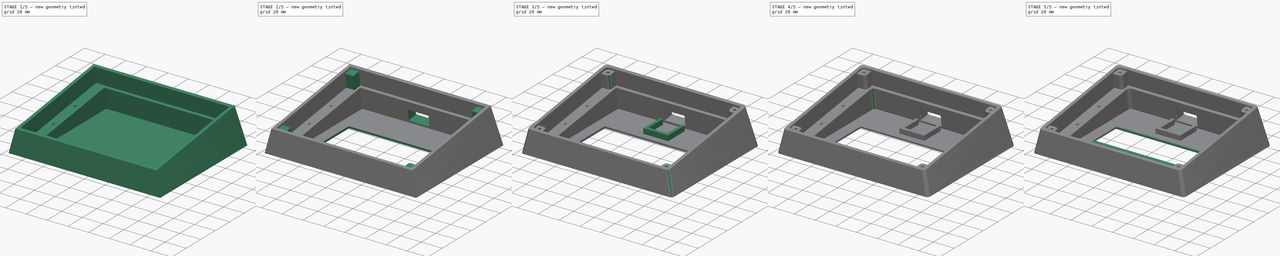
[diagram: build sequence overview — one tinted view per stage of 5, left to right]
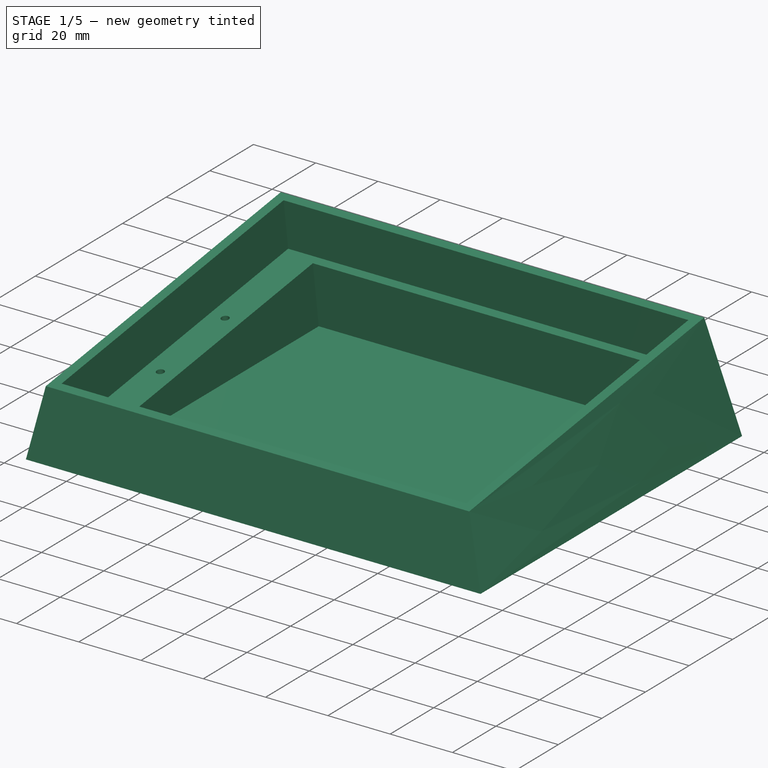
[diagram: stage 1 of 5 — iso view after this stage's code; geometry added in this stage tinted green]
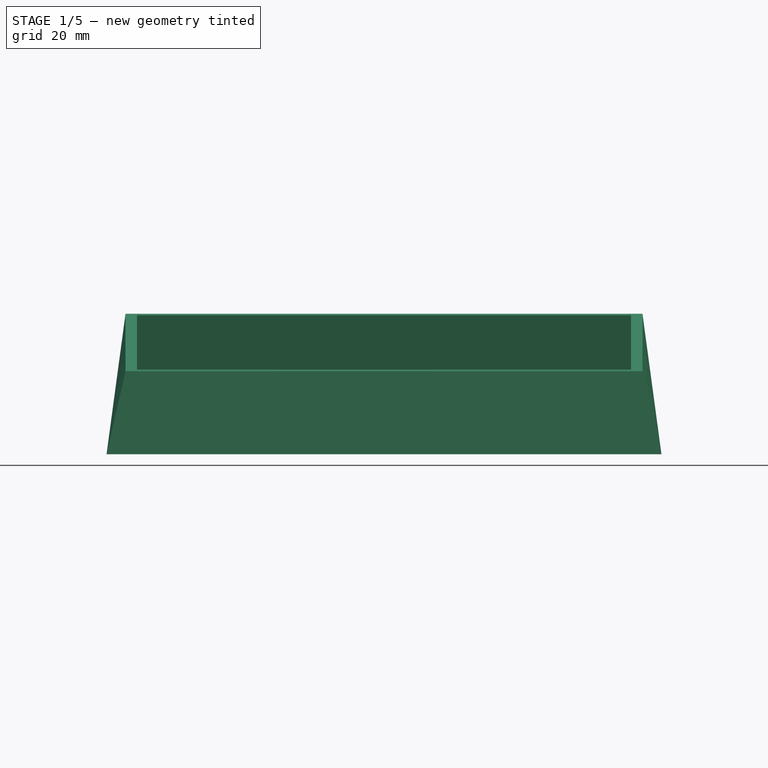
[diagram: stage 1 of 5 — front view after this stage's code; geometry added in this stage tinted green]
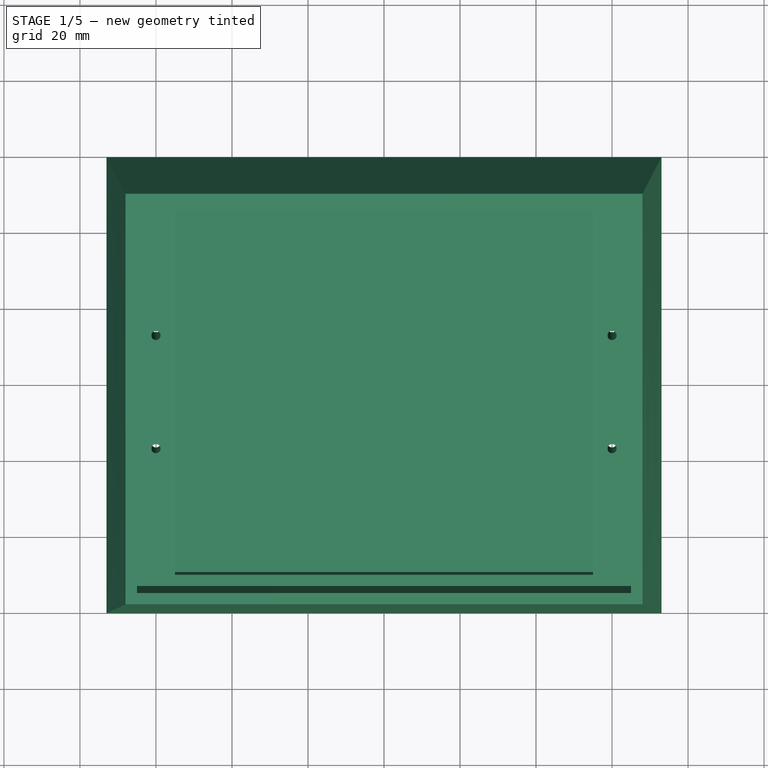
[diagram: stage 1 of 5 — top view after this stage's code; geometry added in this stage tinted green]
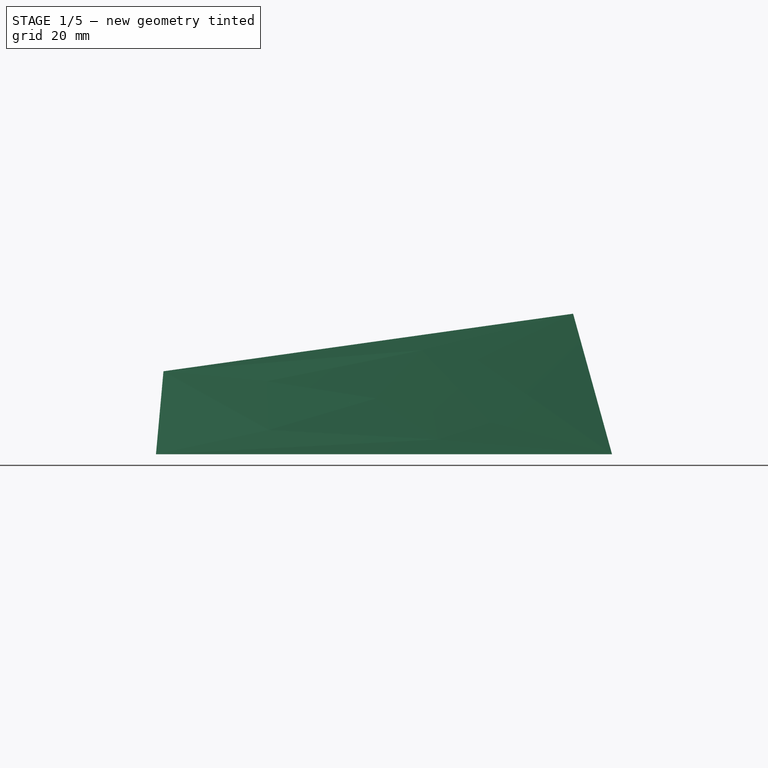
[diagram: stage 1 of 5 — right view after this stage's code; geometry added in this stage tinted green]
FCSTD DOCUMENT  (FreeCAD 0.21R)
Label: plop
License: All rights reserved
LicenseURL: http://en.wikipedia.org/wiki/All_rights_reserved
objects: Sketcher::SketchObject×11, PartDesign::Fillet×7, PartDesign::Pocket×4, PartDesign::Pad×3, PartDesign::Body×2, PartDesign::Hole×2, PartDesign::AdditiveLoft×1, PartDesign::Chamfer×1
note: 49 computed .brp shape members not serialized (recipe doc carries the construction recipe); baked Part::Feature solids carry a one-line shape summary decoded from their .brp

FEATURE [Sketcher::SketchObject] Sketch
  FullyConstrained = true
  MapMode = 5
  Support = -> [XY_Plane]
  sketch-geometry (4):
    g0: LineSegment StartX=-73 StartY=60 StartZ=0 EndX=73 EndY=60 EndZ=0
    g1: LineSegment StartX=73 StartY=60 StartZ=0 EndX=73 EndY=-60 EndZ=0
    g2: LineSegment StartX=73 StartY=-60 StartZ=0 EndX=-73 EndY=-60 EndZ=0
    g3: LineSegment StartX=-73 StartY=-60 StartZ=0 EndX=-73 EndY=60 EndZ=0
  constraints (11):
    c: Coincident(g0,g1)
    c: Coincident(g1,g2)
    c: Coincident(g2,g3)
    c: Coincident(g3,g0)
    c: Horizontal(g0)
    c: Horizontal(g2)
    c: Vertical(g1)
    c: Vertical(g3)
    c: DistanceX(g0,g0) = 146
    c: DistanceY(g1,g1) = 120
    c: Symmetric(g0,g1,g-1)
FEATURE [Sketcher::SketchObject] Sketch001
  AttachmentOffset = pos=(0,0,30) rot=(1,0,0;0.139626rad)
  ExternalGeometry = -> [Sketch]
  FullyConstrained = true
  MapMode = 5
  Placement = pos=(0,0,30) rot=(1,0,0;0.139626rad)
  Support = -> [XY_Plane]
  sketch-geometry (4):
    g0: LineSegment StartX=-68 StartY=50.2409 StartZ=0 EndX=68 EndY=50.2409 EndZ=0
    g1: LineSegment StartX=68 StartY=50.2409 StartZ=0 EndX=68 EndY=-58.5913 EndZ=0
    g2: LineSegment StartX=68 StartY=-58.5913 StartZ=0 EndX=-68 EndY=-58.5913 EndZ=0
    g3: LineSegment StartX=-68 StartY=-58.5913 StartZ=0 EndX=-68 EndY=50.2409 EndZ=0
  constraints (12):
    c: Coincident(g0,g1)
    c: Coincident(g1,g2)
    c: Coincident(g2,g3)
    c: Coincident(g3,g0)
    c: Horizontal(g0)
    c: Horizontal(g2)
    c: Vertical(g1)
    c: Vertical(g3)
    c: DistanceX(g1,g-4) = 5
    c: DistanceY(g-4,g1) = 5
    c: DistanceX(g-3,g0) = 5
    c: DistanceY(g0,g-3) = 5
FEATURE [PartDesign::AdditiveLoft] AdditiveLoft
  Closed = false
  Profile = -> Sketch
  Ruled = true
  Sections = -> [Sketch001]
FEATURE [Sketcher::SketchObject] Sketch002
  ExternalGeometry = -> [AdditiveLoft]
  FullyConstrained = true
  MapMode = 5
  Placement = pos=(0,-4.13456,29.4189) rot=(1,0,0;0.139626rad)
  Support = -> [AdditiveLoft]
  sketch-geometry (4):
    g0: LineSegment StartX=-65 StartY=51.4161 StartZ=0 EndX=65 EndY=51.4161 EndZ=0
    g1: LineSegment StartX=65 StartY=51.4161 StartZ=0 EndX=65 EndY=-51.4161 EndZ=0
    g2: LineSegment StartX=65 StartY=-51.4161 StartZ=0 EndX=-65 EndY=-51.4161 EndZ=0
    g3: LineSegment StartX=-65 StartY=-51.4161 StartZ=0 EndX=-65 EndY=51.4161 EndZ=0
  constraints (12):
    c: Coincident(g0,g1)
    c: Coincident(g1,g2)
    c: Coincident(g2,g3)
    c: Coincident(g3,g0)
    c: Horizontal(g0)
    c: Horizontal(g2)
    c: Vertical(g1)
    c: Vertical(g3)
    c: DistanceY(g0,g-3) = 3
    c: DistanceX(g0,g-3) = 3
    c: DistanceX(g-4,g2) = 3
    c: DistanceY(g-4,g2) = 3
FEATURE [PartDesign::Pocket] Pocket
  BaseFeature = -> AdditiveLoft
  Direction = (0,0.139173,-0.990268)
  Length = 15
  Length2 = 5
  Profile = -> Sketch002
  ReferenceAxis = -> Sketch002 [N_Axis]
  Type = 0
FEATURE [Sketcher::SketchObject] Sketch003
  ExternalGeometry = -> [Pocket]
  FullyConstrained = true
  MapMode = 5
  Placement = pos=(0,-2.04696,14.5649) rot=(1,0,0;0.139626rad)
  Support = -> [Pocket]
  sketch-geometry (4):
    g0: LineSegment StartX=-55 StartY=48.4161 StartZ=0 EndX=55 EndY=48.4161 EndZ=0
    g1: LineSegment StartX=55 StartY=48.4161 StartZ=0 EndX=55 EndY=-48.4161 EndZ=0
    g2: LineSegment StartX=55 StartY=-48.4161 StartZ=0 EndX=-55 EndY=-48.4161 EndZ=0
    g3: LineSegment StartX=-55 StartY=-48.4161 StartZ=0 EndX=-55 EndY=48.4161 EndZ=0
  constraints (12):
    c: Horizontal(g0)
    c: Coincident(g0,g1)
    c: Vertical(g1)
    c: Coincident(g1,g2)
    c: Horizontal(g2)
    c: Coincident(g2,g3)
    c: Coincident(g3,g0)
    c: Vertical(g3)
    c: DistanceX(g-3,g0) = 10
    c: DistanceX(g1,g-4) = 10
    c: DistanceY(g0,g-3) = 3
    c: DistanceY(g-4,g1) = 3
FEATURE [PartDesign::Pocket] Pocket001
  BaseFeature = -> Pocket
  Direction = (0,0.139173,-0.990268)
  Length = 0
  Length2 = 5
  Offset = -2
  Profile = -> Sketch003
  ReferenceAxis = -> Sketch003 [N_Axis]
  Type = 3
  UpToFace = -> Pocket [Face1]
FEATURE [PartDesign::Body] Body001  label="support-slider"
  Group = -> [Sketch004,Pad,Fillet,Fillet001]
  Origin = -> Origin001
  Placement = pos=(0,-2,15) rot=(1,0,0;0.139626rad)
  Tip = -> Fillet001
FEATURE [Sketcher::SketchObject] Sketch005
  FullyConstrained = false
  MapMode = 5
  Placement = pos=(0,-2.04696,14.5649) rot=(1,0,0;0.139626rad)
  Support = -> [Pocket001]
  sketch-geometry (4):
    g0: Circle CenterX=60 CenterY=15 CenterZ=0 NormalX=0 NormalY=0 NormalZ=1 AngleXU=0 Radius=2.62649
    g1: Circle CenterX=60 CenterY=-15 CenterZ=0 NormalX=0 NormalY=0 NormalZ=1 AngleXU=0 Radius=2.62649
    g2: Circle CenterX=-60 CenterY=15 CenterZ=0 NormalX=0 NormalY=0 NormalZ=1 AngleXU=0 Radius=2.62649
    g3: Circle CenterX=-60 CenterY=-15 CenterZ=0 NormalX=0 NormalY=0 NormalZ=1 AngleXU=0 Radius=2.62649
  constraints (8):
    c: Symmetric(g0,g1,g-1)
    c: Symmetric(g2,g3,g-1)
    c: Equal(g0,g1)
    c: Equal(g1,g3)
    c: Equal(g3,g2)
    c: Symmetric(g0,g2,g-2)
    c: DistanceX(g2,g0) = 120
    c: DistanceY(g1,g0) = 30
FEATURE [PartDesign::Hole] Hole
  BaseFeature = -> Pocket001
  CustomThreadClearance = 0
  Depth = 391.021
  DepthType = 1
  Diameter = 2.42
  DrillForDepth = false
  DrillPoint = 1
  DrillPointAngle = 118
  HoleCutCountersinkAngle = 90
  HoleCutCustomValues = false
  HoleCutDepth = 0
  HoleCutDiameter = 6.1
  HoleCutType = 0
  ModelThread = false
  Profile = -> Sketch005
  Tapered = false
  TaperedAngle = 90
  ThreadClass = 0
  ThreadDepth = 391.021
  ThreadDepthType = 0
  ThreadDirection = 0
  ThreadFit = 0
  ThreadSize = 7
  ThreadType = 1
  Threaded = false
  UseCustomThreadClearance = false
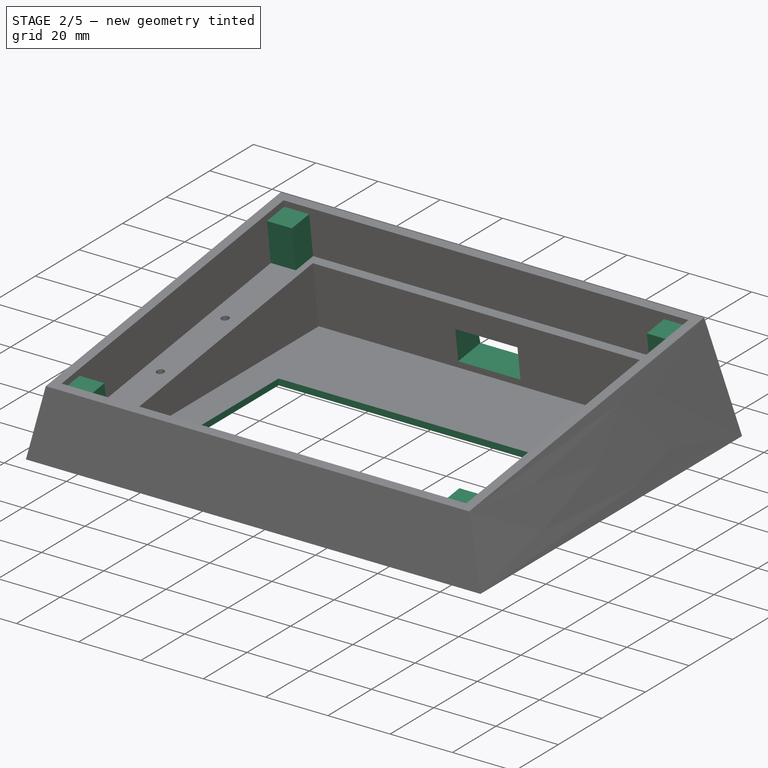
[diagram: stage 2 of 5 — iso view after this stage's code; geometry added in this stage tinted green]
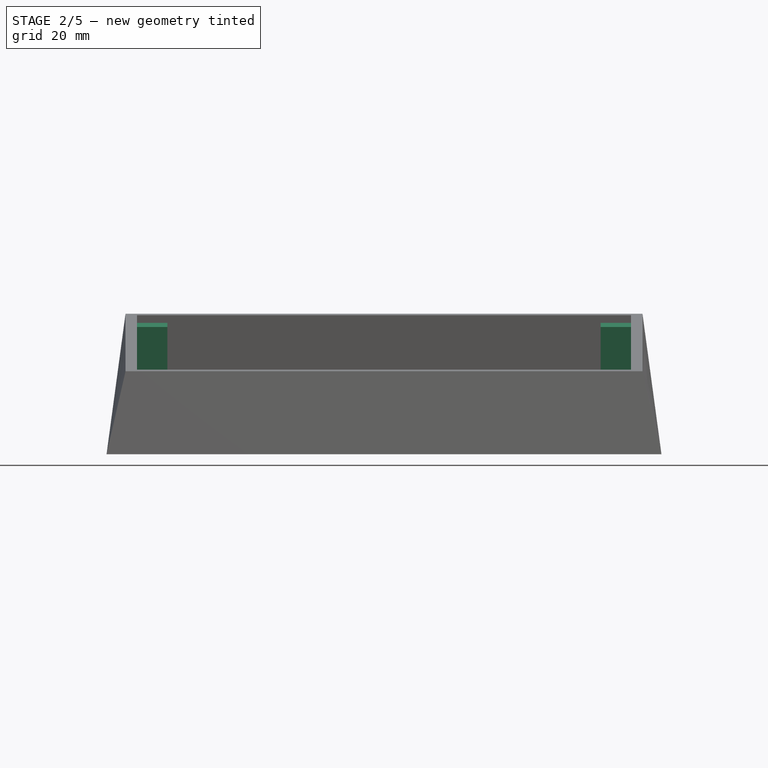
[diagram: stage 2 of 5 — front view after this stage's code; geometry added in this stage tinted green]
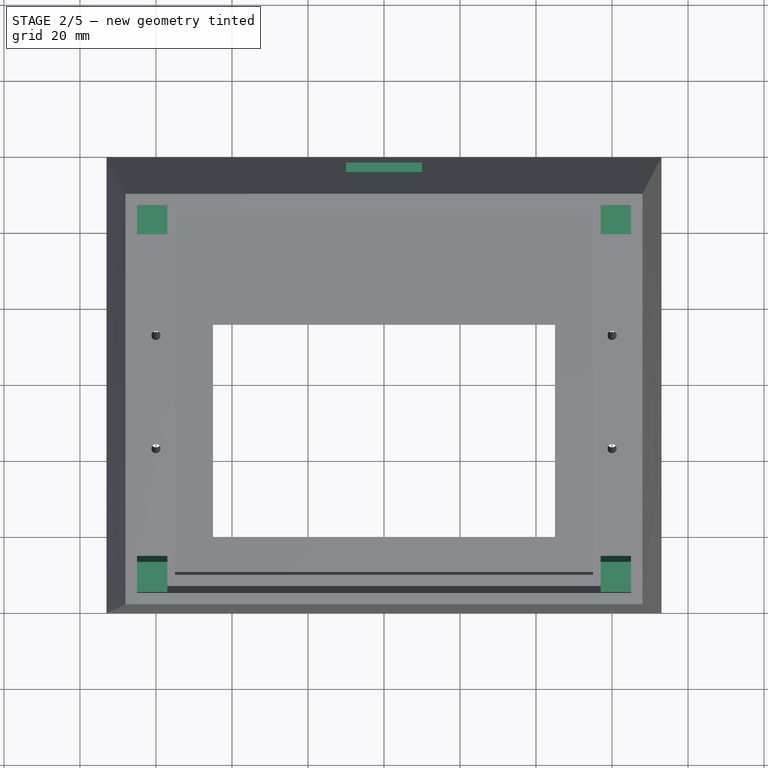
[diagram: stage 2 of 5 — top view after this stage's code; geometry added in this stage tinted green]
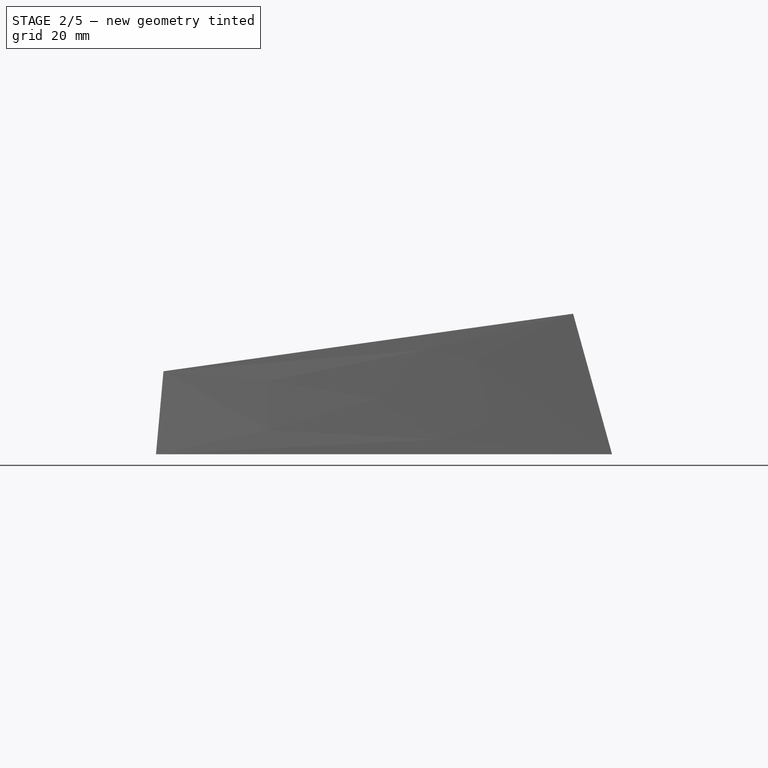
[diagram: stage 2 of 5 — right view after this stage's code; geometry added in this stage tinted green]
FEATURE [Sketcher::SketchObject] Sketch006
  ExternalGeometry = -> [Hole]
  FullyConstrained = true
  MapMode = 5
  Placement = pos=(0,0,1.98054) rot=(0,0,1;0rad)
  Support = -> [Hole]
  sketch-geometry (4):
    g0: LineSegment StartX=-45 StartY=15.8979 StartZ=0 EndX=45 EndY=15.8979 EndZ=0
    g1: LineSegment StartX=45 StartY=15.8979 StartZ=0 EndX=45 EndY=-39.9919 EndZ=0
    g2: LineSegment StartX=45 StartY=-39.9919 StartZ=0 EndX=-45 EndY=-39.9919 EndZ=0
    g3: LineSegment StartX=-45 StartY=-39.9919 StartZ=0 EndX=-45 EndY=15.8979 EndZ=0
  constraints (11):
    c: Coincident(g0,g1)
    c: Coincident(g1,g2)
    c: Coincident(g2,g3)
    c: Coincident(g3,g0)
    c: Horizontal(g2)
    c: Vertical(g1)
    c: Vertical(g3)
    c: DistanceX(g0,g-4) = 10
    c: DistanceY(g-4,g1) = 10
    c: DistanceY(g0,g-4) = 30
    c: Symmetric(g0,g0,g-2)
FEATURE [PartDesign::Pocket] Pocket002
  BaseFeature = -> Hole
  Direction = (0,0,-1)
  Length = 5
  Length2 = 5
  Profile = -> Sketch006
  ReferenceAxis = -> Sketch006 [N_Axis]
  Type = 1
FEATURE [Sketcher::SketchObject] Sketch007
  ExternalGeometry = -> [Pocket002]
  FullyConstrained = true
  MapMode = 5
  Placement = pos=(0,47.9449,6.73822) rot=(1,0,0;1.71042rad)
  Support = -> [Pocket002]
  sketch-geometry (4):
    g0: LineSegment StartX=-10 StartY=7.19556 StartZ=0 EndX=10 EndY=7.19556 EndZ=0
    g1: LineSegment StartX=10 StartY=7.19556 StartZ=0 EndX=10 EndY=-2.80444 EndZ=0
    g2: LineSegment StartX=10 StartY=-2.80444 StartZ=0 EndX=-10 EndY=-2.80444 EndZ=0
    g3: LineSegment StartX=-10 StartY=-2.80444 StartZ=0 EndX=-10 EndY=7.19556 EndZ=0
  constraints (11):
    c: Coincident(g0,g1)
    c: Coincident(g1,g2)
    c: Coincident(g2,g3)
    c: Coincident(g3,g0)
    c: Horizontal(g0)
    c: Vertical(g1)
    c: Vertical(g3)
    c: Distance(g1,g-3) = 2
    c: Distance(g0) = 20
    c: Distance(g1) = 10
    c: Symmetric(g1,g2,g-2)
FEATURE [PartDesign::Pocket] Pocket003
  BaseFeature = -> Pocket002
  Direction = (0,0.990268,0.139173)
  Length = 10
  Length2 = 5
  Profile = -> Sketch007
  ReferenceAxis = -> Sketch007 [N_Axis]
  Type = 1
FEATURE [Sketcher::SketchObject] Sketch008
  ExternalGeometry = -> [Pocket003]
  FullyConstrained = true
  MapMode = 5
  Placement = pos=(0,-2.04696,14.5649) rot=(1,0,0;0.139626rad)
  Support = -> [Pocket003]
  sketch-geometry (16):
    g0: LineSegment StartX=-57 StartY=43.4161 StartZ=0 EndX=-67 EndY=43.4161 EndZ=0
    g1: LineSegment StartX=-67 StartY=43.4161 StartZ=0 EndX=-67 EndY=53.4161 EndZ=0
    g2: LineSegment StartX=-67 StartY=53.4161 StartZ=0 EndX=-57 EndY=53.4161 EndZ=0
    g3: LineSegment StartX=-57 StartY=53.4161 StartZ=0 EndX=-57 EndY=43.4161 EndZ=0
    g4: LineSegment StartX=57 StartY=43.4161 StartZ=0 EndX=67 EndY=43.4161 EndZ=0
    g5: LineSegment StartX=67 StartY=43.4161 StartZ=0 EndX=67 EndY=53.4161 EndZ=0
    g6: LineSegment StartX=67 StartY=53.4161 StartZ=0 EndX=57 EndY=53.4161 EndZ=0
    g7: LineSegment StartX=57 StartY=53.4161 StartZ=0 EndX=57 EndY=43.4161 EndZ=0
    g8: LineSegment StartX=67 StartY=-53.4161 StartZ=0 EndX=57 EndY=-53.4161 EndZ=0
    g9: LineSegment StartX=57 StartY=-53.4161 StartZ=0 EndX=57 EndY=-43.4161 EndZ=0
    g10: LineSegment StartX=57 StartY=-43.4161 StartZ=0 EndX=67 EndY=-43.4161 EndZ=0
    g11: LineSegment StartX=67 StartY=-43.4161 StartZ=0 EndX=67 EndY=-53.4161 EndZ=0
    g12: LineSegment StartX=-57 StartY=-43.4161 StartZ=0 EndX=-67 EndY=-43.4161 EndZ=0
    g13: LineSegment StartX=-67 StartY=-43.4161 StartZ=0 EndX=-67 EndY=-53.4161 EndZ=0
    g14: LineSegment StartX=-67 StartY=-53.4161 StartZ=0 EndX=-57 EndY=-53.4161 EndZ=0
    g15: LineSegment StartX=-57 StartY=-53.4161 StartZ=0 EndX=-57 EndY=-43.4161 EndZ=0
  constraints (47):
    c: Coincident(g0,g1)
    c: Coincident(g1,g2)
    c: Coincident(g2,g3)
    c: Coincident(g3,g0)
    c: Horizontal(g0)
    c: Horizontal(g2)
    c: Vertical(g1)
    c: Vertical(g3)
    c: Distance(g0,g-3) = 2
    c: DistanceY(g0,g-3) = 5
    c: Distance(g3) = 10
    c: Distance(g0) = 10
    c: Coincident(g4,g5)
    c: Coincident(g5,g6)
    c: Coincident(g6,g7)
    c: Coincident(g7,g4)
    c: Horizontal(g4)
    c: Horizontal(g6)
    c: Vertical(g5)
    c: Vertical(g7)
    c: Distance(g4) = 10
    c: Distance(g7) = 10
    c: Symmetric(g4,g0,g-2)
    c: Coincident(g8,g9)
    c: Coincident(g9,g10)
    c: Coincident(g10,g11)
    c: Coincident(g11,g8)
    c: Horizontal(g8)
    c: Horizontal(g10)
    c: Vertical(g9)
    c: Vertical(g11)
    c: Equal(g10,g9)
    c: Distance(g10) = 10
    c: Vertical(g4,g9)
    c: DistanceY(g8,g-3) = 5
    c: Coincident(g12,g13)
    c: Coincident(g13,g14)
    c: Coincident(g14,g15)
    c: Coincident(g15,g12)
    c: Horizontal(g12)
    c: Horizontal(g14)
    c: Vertical(g13)
    c: Vertical(g15)
    c: Equal(g12,g15)
    c: Equal(g12,g9)
    c: Horizontal(g12,g9)
    c: Vertical(g12,g0)
FEATURE [PartDesign::Pad] Pad001
  BaseFeature = -> Pocket003
  Direction = (0,-0.139173,0.990268)
  Length = 10
  Length2 = 10
  Offset = -2
  Profile = -> Sketch008
  ReferenceAxis = -> Sketch008 [N_Axis]
  Type = 3
  UpToFace = -> Pocket003 [Face14]
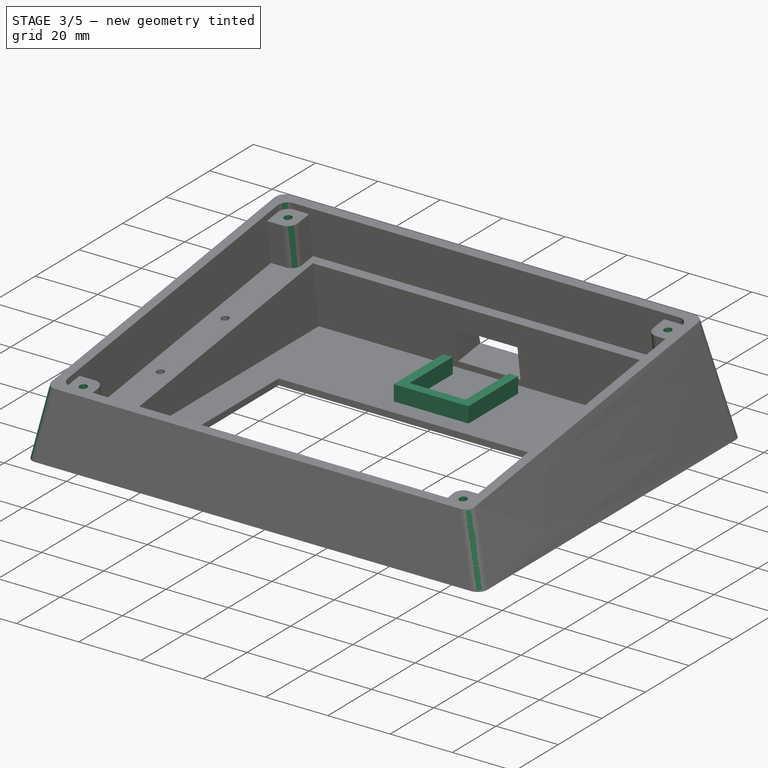
[diagram: stage 3 of 5 — iso view after this stage's code; geometry added in this stage tinted green]
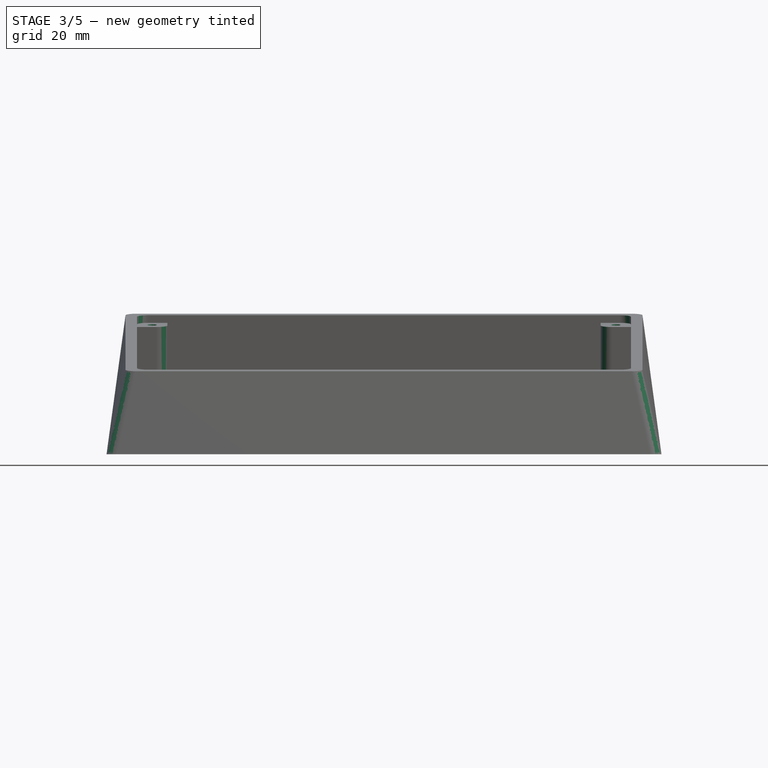
[diagram: stage 3 of 5 — front view after this stage's code; geometry added in this stage tinted green]
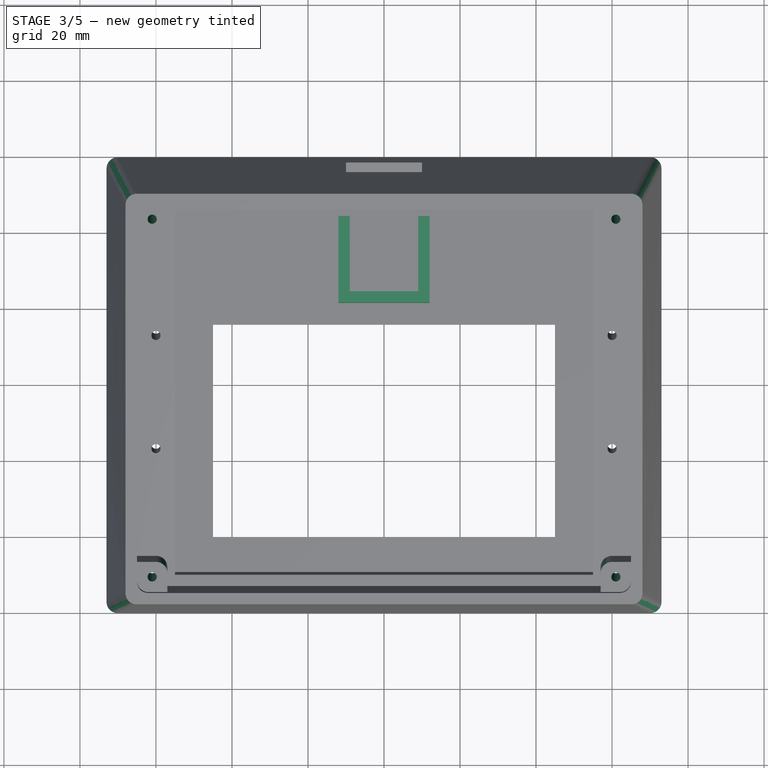
[diagram: stage 3 of 5 — top view after this stage's code; geometry added in this stage tinted green]
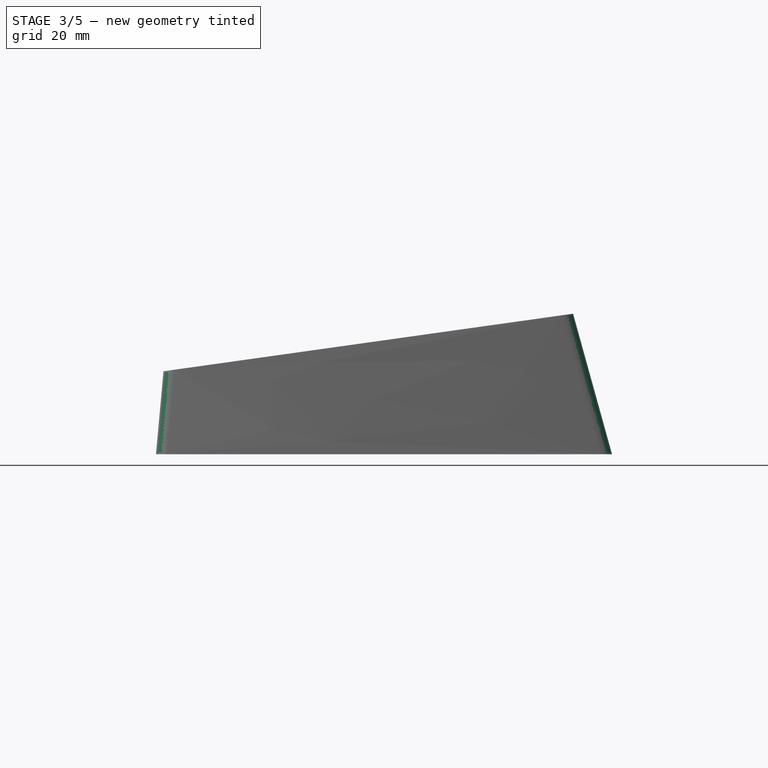
[diagram: stage 3 of 5 — right view after this stage's code; geometry added in this stage tinted green]
FEATURE [Sketcher::SketchObject] Sketch009
  ExternalGeometry = -> [Pad001]
  FullyConstrained = true
  MapMode = 5
  Placement = pos=(0,-3.85621,27.4384) rot=(1,0,0;0.139626rad)
  Support = -> [Pad001]
  sketch-geometry (4):
    g0: Circle CenterX=61 CenterY=47.4161 CenterZ=0 NormalX=0 NormalY=0 NormalZ=1 AngleXU=0 Radius=1.1
    g1: Circle CenterX=61 CenterY=-47.4161 CenterZ=0 NormalX=0 NormalY=0 NormalZ=1 AngleXU=0 Radius=1.1
    g2: Circle CenterX=-61 CenterY=-47.4161 CenterZ=0 NormalX=0 NormalY=0 NormalZ=1 AngleXU=0 Radius=1.1
    g3: Circle CenterX=-61 CenterY=47.4161 CenterZ=0 NormalX=0 NormalY=0 NormalZ=1 AngleXU=0 Radius=1.1
  constraints (12):
    c: DistanceX(g-3,g0) = 4
    c: DistanceY(g-3,g0) = 4
    c: DistanceY(g1,g-5) = 4
    c: DistanceX(g-5,g1) = 4
    c: Distance(g2,g-6) = 4
    c: DistanceX(g2,g-6) = 4
    c: Distance(g3,g-4) = 4
    c: DistanceX(g3,g-4) = 4
    c: Equal(g3,g0)
    c: Equal(g0,g1)
    c: Equal(g1,g2)
    c: Diameter(g2) = 2.2
FEATURE [PartDesign::Hole] Hole001
  BaseFeature = -> Pad001
  CustomThreadClearance = 0
  Depth = 391.021
  DepthType = 1
  Diameter = 2.42
  DrillForDepth = false
  DrillPoint = 1
  DrillPointAngle = 118
  HoleCutCountersinkAngle = 90
  HoleCutCustomValues = false
  HoleCutDepth = 0
  HoleCutDiameter = 6.1
  HoleCutType = 0
  ModelThread = false
  Profile = -> Sketch009
  Tapered = false
  TaperedAngle = 90
  ThreadClass = 0
  ThreadDepth = 391.021
  ThreadDepthType = 0
  ThreadDirection = 0
  ThreadFit = 0
  ThreadSize = 7
  ThreadType = 1
  Threaded = false
  UseCustomThreadClearance = false
FEATURE [Sketcher::SketchObject] Sketch010
  ExternalGeometry = -> [Hole001]
  FullyConstrained = false
  MapMode = 5
  Placement = pos=(0,0,1.98054) rot=(0,0,1;0rad)
  Support = -> [Hole001]
  sketch-geometry (8):
    g0: LineSegment StartX=-12 StartY=44.3967 StartZ=0 EndX=-12 EndY=21.6136 EndZ=0
    g1: LineSegment StartX=-12 StartY=21.6136 StartZ=0 EndX=12 EndY=21.6136 EndZ=0
    g2: LineSegment StartX=12 StartY=21.6136 StartZ=0 EndX=12 EndY=44.3967 EndZ=0
    g3: LineSegment StartX=12 StartY=44.3967 StartZ=0 EndX=9 EndY=44.3967 EndZ=0
    g4: LineSegment StartX=9 StartY=44.3967 StartZ=0 EndX=9 EndY=24.6136 EndZ=0
    g5: LineSegment StartX=9 StartY=24.6136 StartZ=0 EndX=-9 EndY=24.6136 EndZ=0
    g6: LineSegment StartX=-9 StartY=24.6136 StartZ=0 EndX=-9 EndY=44.3967 EndZ=0
    g7: LineSegment StartX=-9 StartY=44.3967 StartZ=0 EndX=-12 EndY=44.3967 EndZ=0
  constraints (22):
    c: Vertical(g0)
    c: Coincident(g0,g1)
    c: Coincident(g1,g2)
    c: Vertical(g2)
    c: Coincident(g2,g3)
    c: Horizontal(g3)
    c: Coincident(g3,g4)
    c: Vertical(g4)
    c: Coincident(g4,g5)
    c: Coincident(g5,g6)
    c: Vertical(g6)
    c: Coincident(g6,g7)
    c: Coincident(g7,g0)
    c: Horizontal(g7)
    c: Equal(g7,g3)
    c: Horizontal(g5)
    c: Equal(g0,g2)
    c: Symmetric(g1,g0,g-2)
    c: Distance(g7) = 3
    c: Distance(g4,g1) = 3
    c: Distance(g5) = 18
    c: Distance(g5,g-3) = 24
FEATURE [PartDesign::Pad] Pad002
  BaseFeature = -> Hole001
  Direction = (0,0,1)
  Length = 5
  Length2 = 10
  Profile = -> Sketch010
  ReferenceAxis = -> Sketch010 [N_Axis]
  Type = 0
FEATURE [PartDesign::Fillet] Fillet002
  Base = -> Pad002 [Edge25,Edge26,Edge18,Edge17,Edge116,Edge112,Edge113,Edge109,Edge124,Edge126,Edge123,Edge125]
  BaseFeature = -> Pad002
  Radius = 3
  SupportTransform = false
  UseAllEdges = false
FEATURE [PartDesign::Chamfer] Chamfer
  Angle = 45
  Base = -> Fillet002 [Edge11,Edge16,Edge19,Edge20,Edge18,Edge17,Edge10,Edge9]
  BaseFeature = -> Fillet002
  ChamferType = 0
  FlipDirection = false
  Size = 3
  Size2 = 1
  SupportTransform = false
  UseAllEdges = false
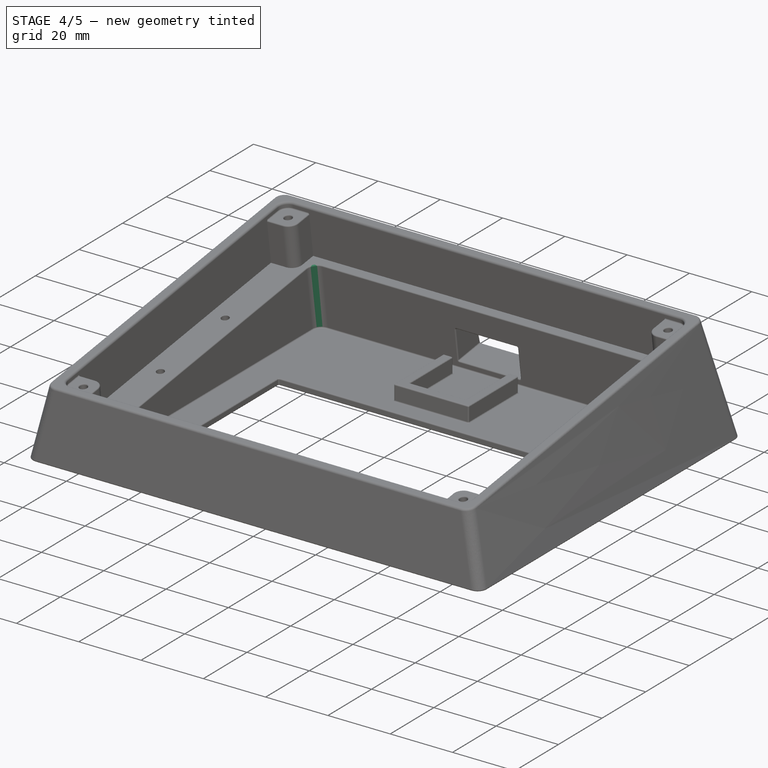
[diagram: stage 4 of 5 — iso view after this stage's code; geometry added in this stage tinted green]
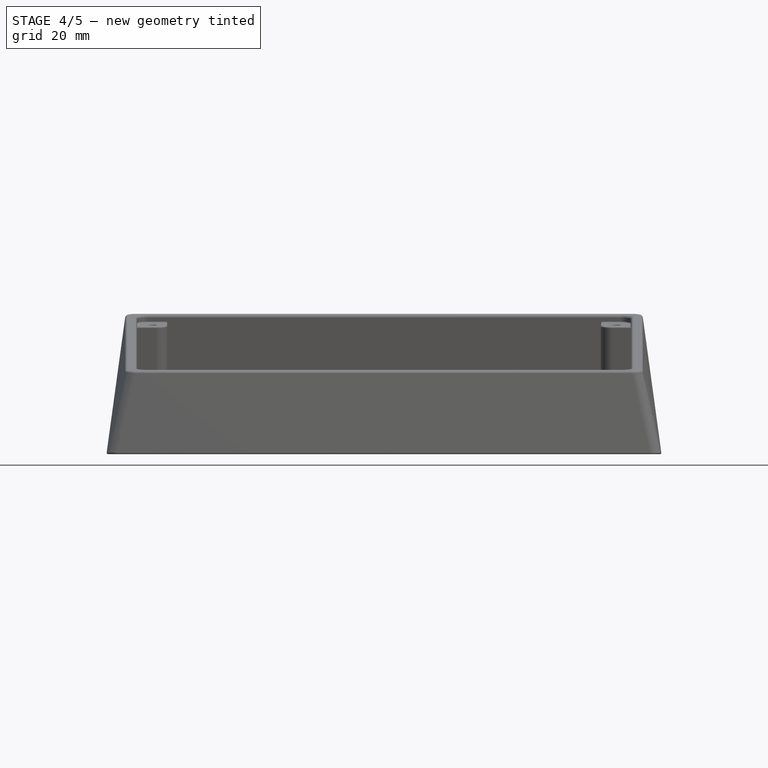
[diagram: stage 4 of 5 — front view after this stage's code; geometry added in this stage tinted green]
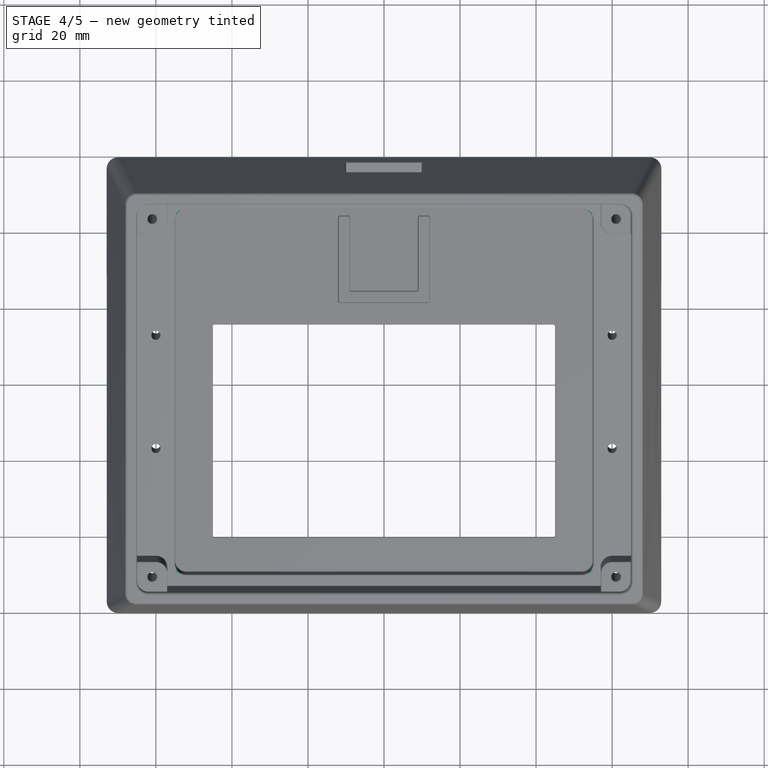
[diagram: stage 4 of 5 — top view after this stage's code; geometry added in this stage tinted green]
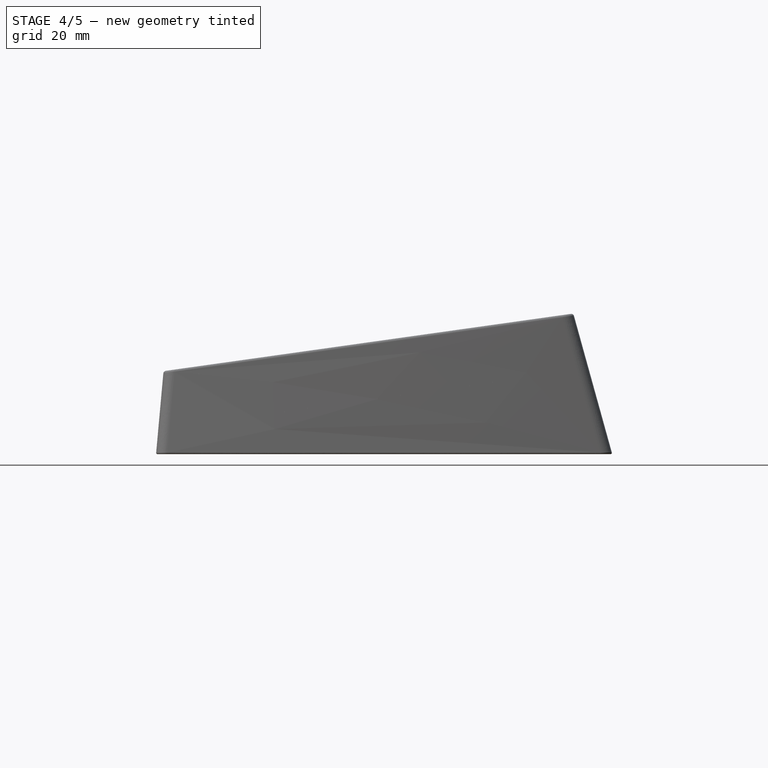
[diagram: stage 4 of 5 — right view after this stage's code; geometry added in this stage tinted green]
FEATURE [PartDesign::Fillet] Fillet003
  Base = -> Chamfer [Edge146,Edge145,Edge148,Edge150]
  BaseFeature = -> Chamfer
  Radius = 3
  SupportTransform = false
  UseAllEdges = false
FEATURE [PartDesign::Fillet] Fillet004
  Base = -> Fillet003 [Face28,Face15,Face16,Face20,Face14,Face18,Face17,Face21,Face1,Edge46,Edge41,Edge43,Edge45,Face6,Face23,Face24,Face26,Face25,Face27,Face69,Face73,Face65,Face71]
  BaseFeature = -> Fillet003
  Radius = 0.35
  SupportTransform = false
  UseAllEdges = false
FEATURE [PartDesign::Fillet] Fillet005
  Base = -> Fillet004 [Face165]
  BaseFeature = -> Fillet004
  Radius = 0.75
  SupportTransform = false
  UseAllEdges = false
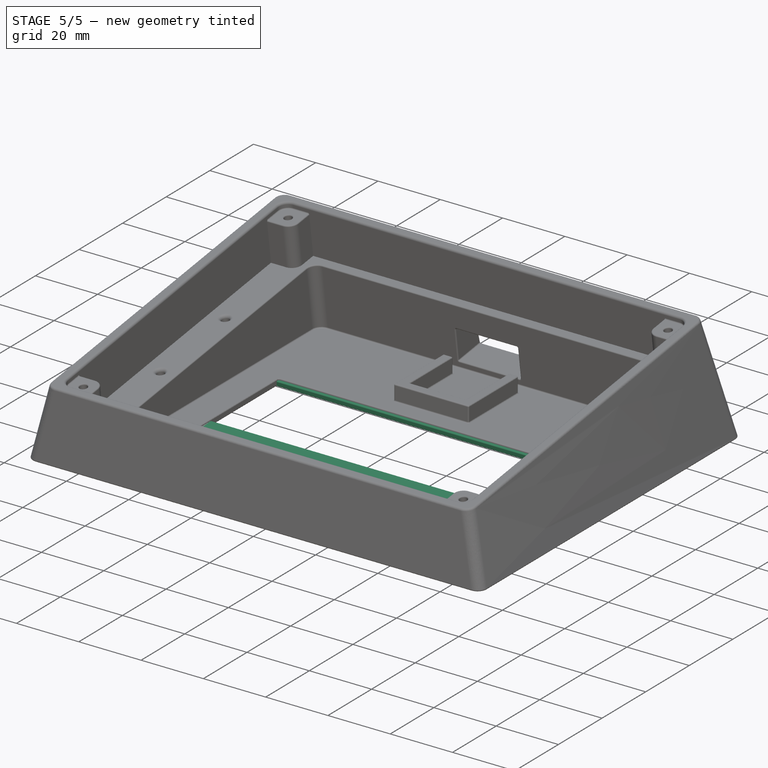
[diagram: stage 5 of 5 — iso view after this stage's code; geometry added in this stage tinted green]
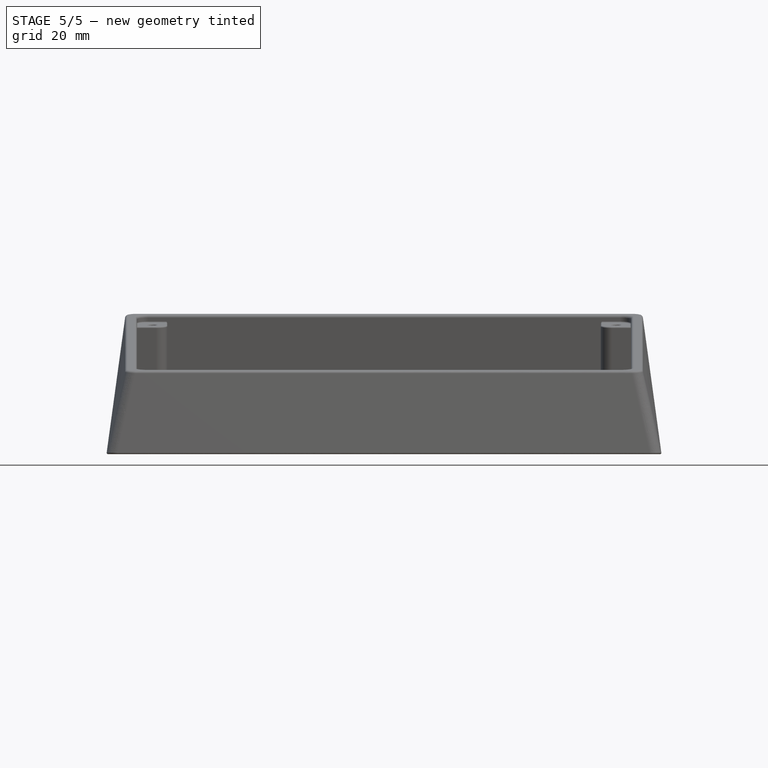
[diagram: stage 5 of 5 — front view after this stage's code; geometry added in this stage tinted green]
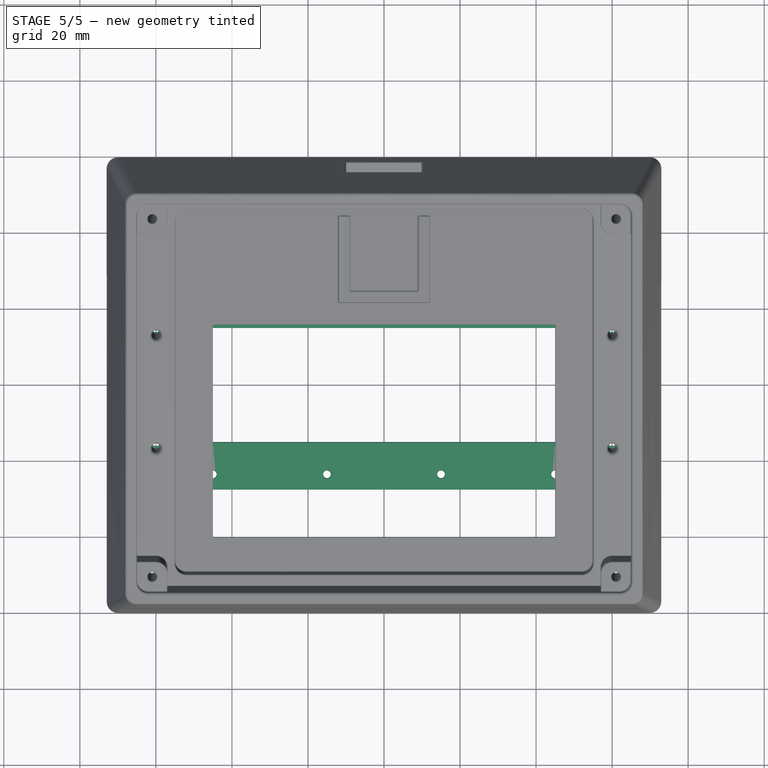
[diagram: stage 5 of 5 — top view after this stage's code; geometry added in this stage tinted green]
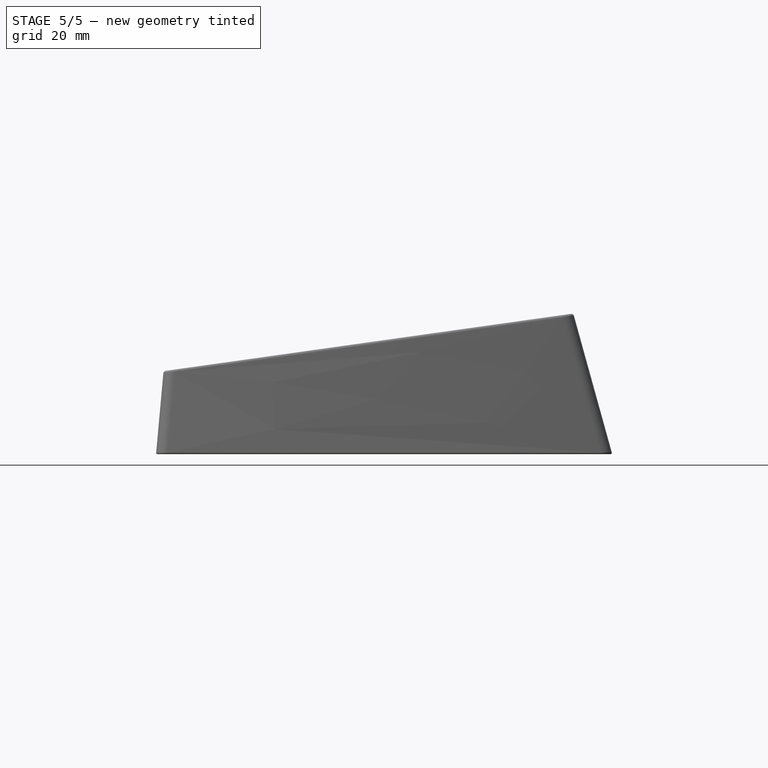
[diagram: stage 5 of 5 — right view after this stage's code; geometry added in this stage tinted green]
FEATURE [Sketcher::SketchObject] Sketch004
  FullyConstrained = true
  MapMode = 5
  Support = -> [XY_Plane001]
  sketch-geometry (20):
    g0: LineSegment StartX=-65 StartY=27.5 StartZ=0 EndX=65 EndY=27.5 EndZ=0
    g1: LineSegment StartX=65 StartY=27.5 StartZ=0 EndX=65 EndY=-27.5 EndZ=0
    g2: LineSegment StartX=65 StartY=-27.5 StartZ=0 EndX=-65 EndY=-27.5 EndZ=0
    g3: LineSegment StartX=-65 StartY=-27.5 StartZ=0 EndX=-65 EndY=27.5 EndZ=0
    g4: Circle CenterX=-45 CenterY=23.5 CenterZ=0 NormalX=0 NormalY=0 NormalZ=1 AngleXU=0 Radius=1
    g5: Circle CenterX=-45 CenterY=-23.5 CenterZ=0 NormalX=0 NormalY=0 NormalZ=1 AngleXU=0 Radius=1
    g6: Circle CenterX=-15 CenterY=23.5 CenterZ=0 NormalX=0 NormalY=0 NormalZ=1 AngleXU=0 Radius=1
    g7: Circle CenterX=-15 CenterY=-23.5 CenterZ=0 NormalX=0 NormalY=0 NormalZ=1 AngleXU=0 Radius=1
    g8: Circle CenterX=15 CenterY=23.5 CenterZ=0 NormalX=0 NormalY=0 NormalZ=1 AngleXU=0 Radius=1
    g9: Circle CenterX=15 CenterY=-23.5 CenterZ=0 NormalX=0 NormalY=0 NormalZ=1 AngleXU=0 Radius=1
    g10: Circle CenterX=45 CenterY=-23.5 CenterZ=0 NormalX=0 NormalY=0 NormalZ=1 AngleXU=0 Radius=1
    g11: Circle CenterX=45 CenterY=23.5 CenterZ=0 NormalX=0 NormalY=0 NormalZ=1 AngleXU=0 Radius=1
    g12: Circle CenterX=60 CenterY=15 CenterZ=0 NormalX=0 NormalY=0 NormalZ=1 AngleXU=0 Radius=1.1
    g13: Circle CenterX=60 CenterY=-15 CenterZ=0 NormalX=0 NormalY=0 NormalZ=1 AngleXU=0 Radius=1.1
    g14: Circle CenterX=-60 CenterY=15 CenterZ=0 NormalX=0 NormalY=0 NormalZ=1 AngleXU=0 Radius=1.1
    g15: Circle CenterX=-60 CenterY=-15 CenterZ=0 NormalX=0 NormalY=0 NormalZ=1 AngleXU=0 Radius=1.1
    g16: LineSegment StartX=-50 StartY=15 StartZ=0 EndX=50 EndY=15 EndZ=0
    g17: LineSegment StartX=50 StartY=15 StartZ=0 EndX=50 EndY=-15 EndZ=0
    g18: LineSegment StartX=50 StartY=-15 StartZ=0 EndX=-50 EndY=-15 EndZ=0
    g19: LineSegment StartX=-50 StartY=-15 StartZ=0 EndX=-50 EndY=15 EndZ=0
  constraints (51):
    c: Coincident(g0,g1)
    c: Coincident(g1,g2)
    c: Coincident(g2,g3)
    c: Coincident(g3,g0)
    c: Horizontal(g0)
    c: Horizontal(g2)
    c: Vertical(g1)
    c: Vertical(g3)
    c: DistanceX(g0,g0) = 130
    c: DistanceY(g1,g1) = 55
    c: Symmetric(g0,g1,g-1)
    c: Symmetric(g11,g10,g-1)
    c: Symmetric(g8,g9,g-1)
    c: Symmetric(g6,g7,g-1)
    c: Symmetric(g4,g5,g-1)
    c: Equal(g4,g6)
    c: Equal(g4,g7)
    c: Equal(g4,g5)
    c: Equal(g4,g9)
    c: Equal(g4,g8)
    c: Equal(g4,g11)
    c: Equal(g4,g10)
    c: Diameter(g4) = 2
    c: Horizontal(g11,g8)
    c: Horizontal(g8,g6)
    c: Horizontal(g6,g4)
    c: DistanceY(g9,g8) = 47
    c: DistanceX(g6,g8) = 30
    c: DistanceX(g4,g6) = 30
    c: DistanceX(g8,g11) = 30
    c: DistanceX(g11,g0) = 20
    c: Symmetric(g15,g14,g-1)
    c: Equal(g15,g14)
    c: Equal(g15,g12)
    c: Equal(g15,g13)
    c: Diameter(g15) = 2.2
    c: Symmetric(g12,g13,g-1)
    c: Symmetric(g13,g15,g-2)
    c: Distance(g12,g1) = 5
    c: DistanceY(g13,g12) = 30
    c: Coincident(g16,g17)
    c: Coincident(g17,g18)
    c: Coincident(g18,g19)
    c: Coincident(g19,g16)
    c: Horizontal(g16)
    c: Horizontal(g18)
    c: Vertical(g17)
    c: Vertical(g19)
    c: Symmetric(g16,g17,g-1)
    c: DistanceX(g16,g16) = 100
    c: Distance(g17) = 30
FEATURE [PartDesign::Pad] Pad
  Direction = (0,0,1)
  Length = 1.5
  Length2 = 10
  Profile = -> Sketch004
  ReferenceAxis = -> Sketch004 [N_Axis]
  Type = 0
FEATURE [PartDesign::Fillet] Fillet
  Base = -> Pad [Edge5,Edge2,Edge1,Edge8,Edge13,Edge14,Edge17,Edge20]
  BaseFeature = -> Pad
  Radius = 5
  SupportTransform = false
  UseAllEdges = false
FEATURE [PartDesign::Fillet] Fillet001
  Base = -> Fillet [Face5,Face2]
  BaseFeature = -> Fillet
  Radius = 0.3
  SupportTransform = false
  UseAllEdges = false
FEATURE [PartDesign::Fillet] Fillet006
  Base = -> Fillet005 [Edge57,Edge56,Edge55,Edge54]
  BaseFeature = -> Fillet005
  Radius = 1
  SupportTransform = false
  UseAllEdges = false
FEATURE [PartDesign::Body] Body  label="box"
  Group = -> [Sketch,Sketch001,AdditiveLoft,Sketch002,Pocket,Sketch003,Pocket001,Sketch005,Hole,Sketch006,Pocket002,Sketch007,Pocket003,Sketch008,Pad001,Sketch009,Hole001,Sketch010,Pad002,Fillet002,Chamfer,Fillet003,Fillet004,Fillet005,Fillet006]
  Origin = -> Origin
  Tip = -> Fillet006
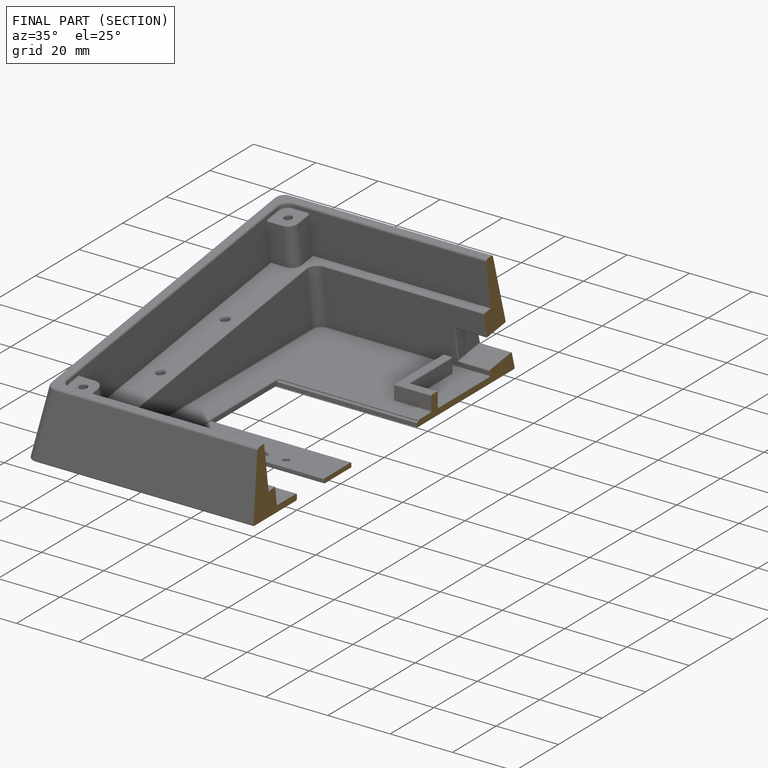
[diagram: finished part — half-section view (interior)]
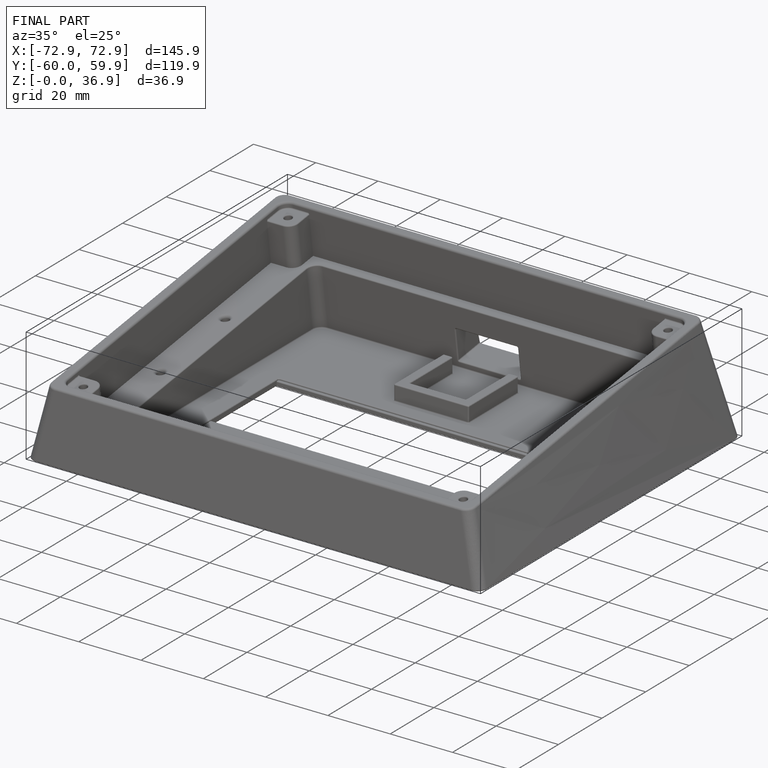
[diagram: finished part — iso view with bounding-box wireframe]
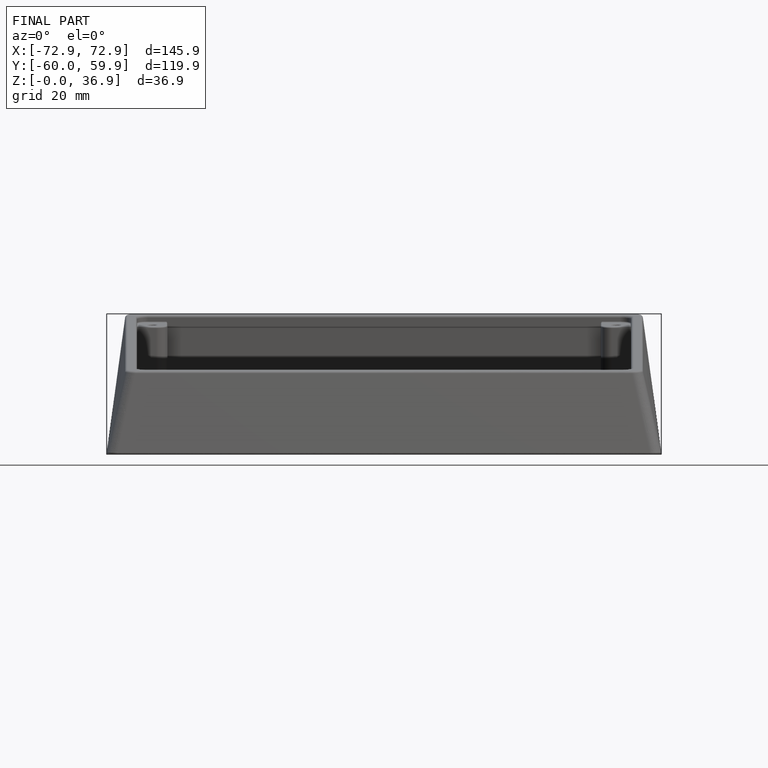
[diagram: finished part — front view with bounding-box wireframe]
